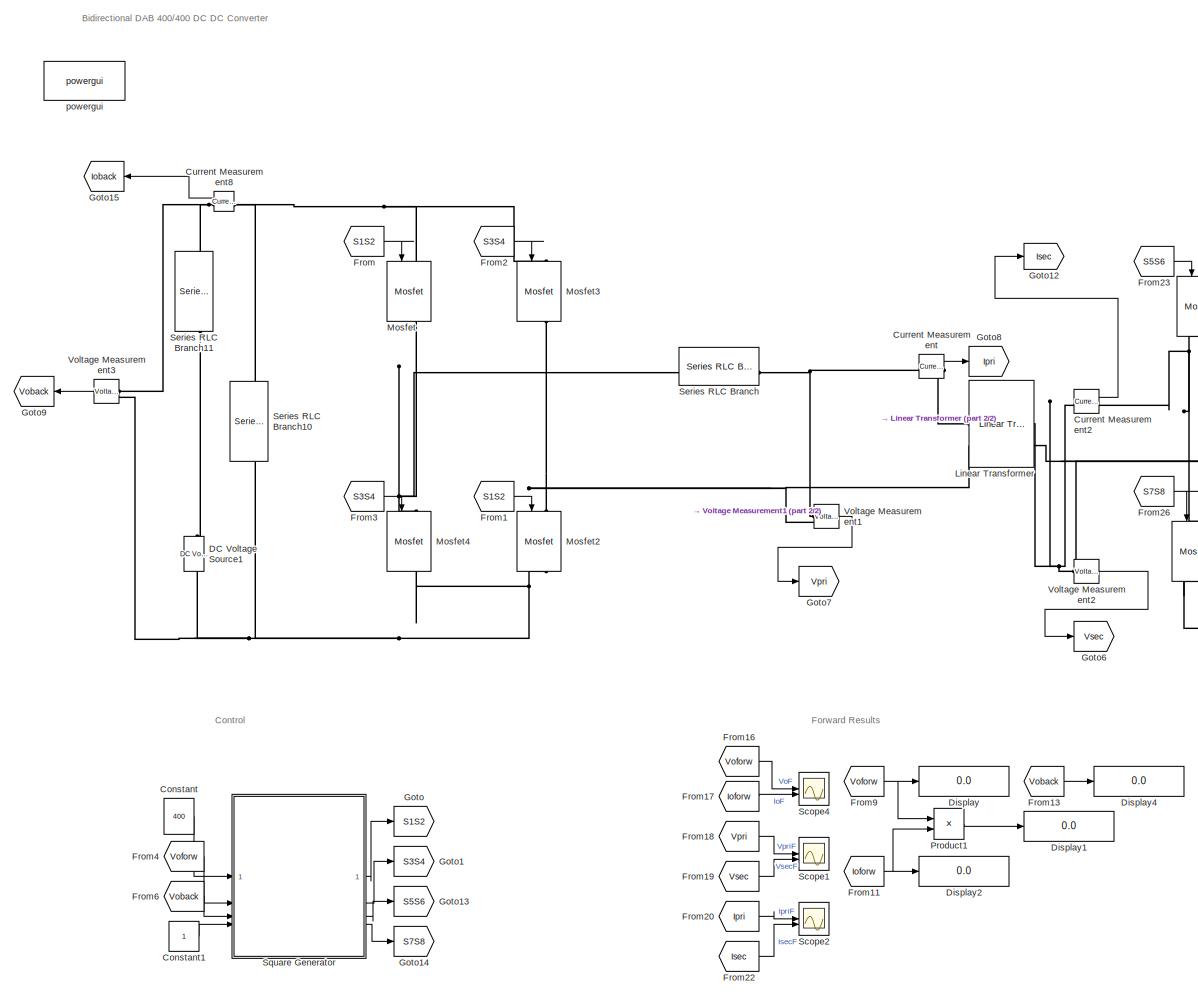
[diagram: root canvas - part 1/2, center side, full height]
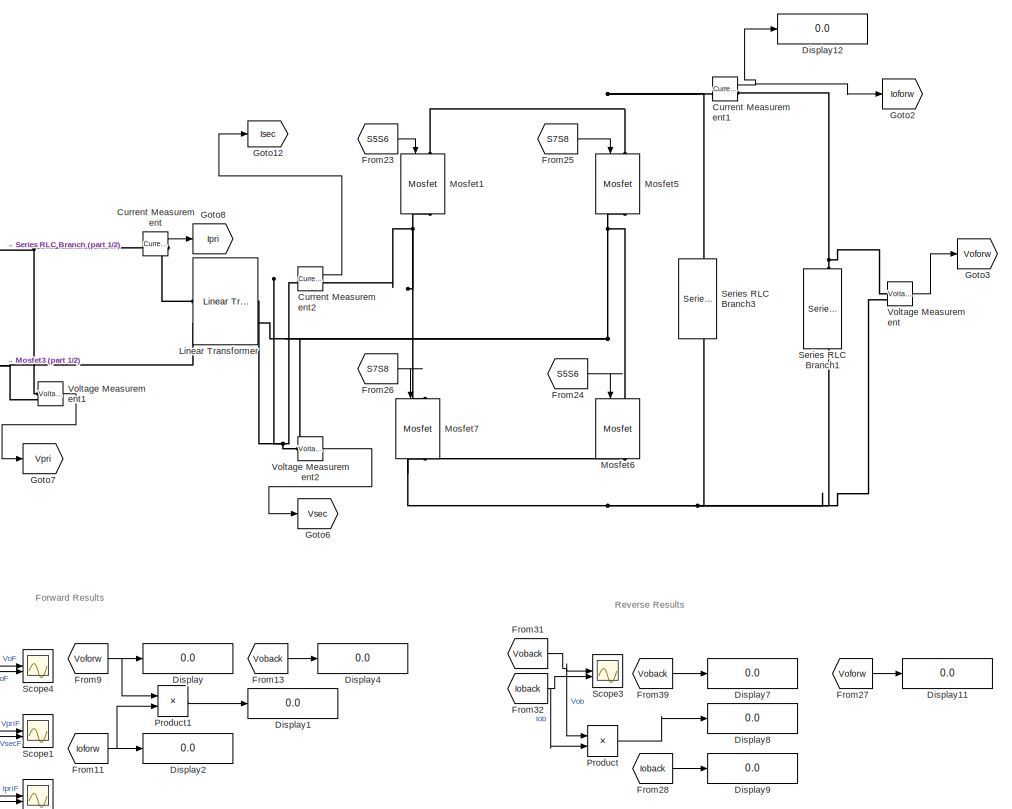
[diagram: root canvas - part 2/2, right side, full height]
MODEL slx_0366bad16a1a
KIND model
CONFIG AbsTol = auto
CONFIG EnableMultiTasking = off
CONFIG FixedStep = auto
CONFIG MaxStep = 1e-7
CONFIG MinStep = auto
CONFIG RelTol = 1e-7
CONFIG SampleTimeConstraint = Unconstrained
CONFIG SolverName = ode23tb
CONFIG StartTime = 0.0
CONFIG StopTime = 0.1
WORKSPACE source: mxarray member
WORKSPACE Ki = 0.0018
WORKSPACE Kp = 0.05
BLOCK [Constant] Constant
  Value = 400
BLOCK [Constant] Constant1
BLOCK [Reference] Current Measurement  REF=spsCurrentMeasurementLib/Current Measurement
  LibrarySourceBlock = sps_lib/Sensors and Measurements/Current Measurement
  SourceBlock = spsCurrentMeasurementLib/Current Measurement
  SourceType = Current Measurement
  UserDataPersistent = on
BLOCK [Reference] Current Measurement1  REF=spsCurrentMeasurementLib/Current Measurement
  LibrarySourceBlock = sps_lib/Sensors and Measurements/Current Measurement
  SourceBlock = spsCurrentMeasurementLib/Current Measurement
  SourceType = Current Measurement
  UserDataPersistent = on
BLOCK [Reference] Current Measurement2  REF=spsCurrentMeasurementLib/Current Measurement
  LibrarySourceBlock = sps_lib/Sensors and Measurements/Current Measurement
  SourceBlock = spsCurrentMeasurementLib/Current Measurement
  SourceType = Current Measurement
  UserDataPersistent = on
BLOCK [Reference] Current Measurement8  REF=spsCurrentMeasurementLib/Current Measurement
  LibrarySourceBlock = sps_lib/Sensors and Measurements/Current Measurement
  SourceBlock = spsCurrentMeasurementLib/Current Measurement
  SourceType = Current Measurement
  UserDataPersistent = on
BLOCK [Reference] DC Voltage Source1  REF=spsDCVoltageSourceLib/DC Voltage Source
  LibrarySourceBlock = sps_lib/Sources/DC Voltage Source
  SourceBlock = spsDCVoltageSourceLib/DC Voltage Source
  SourceType = DC Voltage Source
BLOCK [Display] Display
  Decimation = 1
BLOCK [Display] Display1
  Decimation = 1
BLOCK [Display] Display11
  Decimation = 1
BLOCK [Display] Display12
  Decimation = 1
BLOCK [Display] Display2
  Decimation = 1
BLOCK [Display] Display4
  Decimation = 1
BLOCK [Display] Display7
  Decimation = 1
BLOCK [Display] Display8
  Decimation = 1
BLOCK [Display] Display9
  Decimation = 1
BLOCK [From] From
  GotoTag = S1S2
BLOCK [From] From1
  GotoTag = S1S2
BLOCK [From] From11
  GotoTag = Ioforw
BLOCK [From] From13
  GotoTag = Voback
  NameLocation = top
BLOCK [From] From16
  GotoTag = Voforw
BLOCK [From] From17
  GotoTag = Ioforw
BLOCK [From] From18
  GotoTag = Vpri
BLOCK [From] From19
  GotoTag = Vsec
BLOCK [From] From2
  GotoTag = S3S4
BLOCK [From] From20
  GotoTag = Ipri
BLOCK [From] From22
  GotoTag = Isec
BLOCK [From] From23
  GotoTag = S5S6
BLOCK [From] From24
  GotoTag = S5S6
BLOCK [From] From25
  GotoTag = S7S8
BLOCK [From] From26
  GotoTag = S7S8
BLOCK [From] From27
  GotoTag = Voforw
  NameLocation = top
BLOCK [From] From28
  GotoTag = Ioback
BLOCK [From] From3
  GotoTag = S3S4
BLOCK [From] From31
  GotoTag = Voback
BLOCK [From] From32
  GotoTag = Ioback
BLOCK [From] From39
  GotoTag = Voback
BLOCK [From] From4
  GotoTag = Voforw
BLOCK [From] From6
  GotoTag = Voback
BLOCK [From] From9
  GotoTag = Voforw
BLOCK [Goto] Goto
  GotoTag = S1S2
BLOCK [Goto] Goto1
  GotoTag = S3S4
BLOCK [Goto] Goto12
  GotoTag = Isec
BLOCK [Goto] Goto13
  GotoTag = S5S6
BLOCK [Goto] Goto14
  GotoTag = S7S8
BLOCK [Goto] Goto15
  GotoTag = Ioback
  NameLocation = top
BLOCK [Goto] Goto2
  GotoTag = Ioforw
BLOCK [Goto] Goto3
  GotoTag = Voforw
BLOCK [Goto] Goto6
  GotoTag = Vsec
BLOCK [Goto] Goto7
  GotoTag = Vpri
BLOCK [Goto] Goto8
  GotoTag = Ipri
BLOCK [Goto] Goto9
  GotoTag = Voback
  NameLocation = top
BLOCK [Reference] Linear Transformer  REF=spsLinearTransformerLib/Linear Transformer
  LibrarySourceBlock = sps_lib/Power Grid Elements/Linear Transformer
  SourceBlock = spsLinearTransformerLib/Linear Transformer
  SourceType = Linear Transformer
BLOCK [Reference] Mosfet  REF=spsMosfetLib/Mosfet
  LibrarySourceBlock = sps_lib/Power Electronics/Mosfet
  NameLocation = left
  SourceBlock = spsMosfetLib/Mosfet
  SourceType = Mosfet
BLOCK [Reference] Mosfet1  REF=spsMosfetLib/Mosfet
  LibrarySourceBlock = sps_lib/Power Electronics/Mosfet
  NameLocation = left
  SourceBlock = spsMosfetLib/Mosfet
  SourceType = Mosfet
BLOCK [Reference] Mosfet2  REF=spsMosfetLib/Mosfet
  LibrarySourceBlock = sps_lib/Power Electronics/Mosfet
  NameLocation = left
  SourceBlock = spsMosfetLib/Mosfet
  SourceType = Mosfet
BLOCK [Reference] Mosfet3  REF=spsMosfetLib/Mosfet
  LibrarySourceBlock = sps_lib/Power Electronics/Mosfet
  NameLocation = left
  SourceBlock = spsMosfetLib/Mosfet
  SourceType = Mosfet
BLOCK [Reference] Mosfet4  REF=spsMosfetLib/Mosfet
  LibrarySourceBlock = sps_lib/Power Electronics/Mosfet
  NameLocation = left
  SourceBlock = spsMosfetLib/Mosfet
  SourceType = Mosfet
BLOCK [Reference] Mosfet5  REF=spsMosfetLib/Mosfet
  LibrarySourceBlock = sps_lib/Power Electronics/Mosfet
  NameLocation = left
  SourceBlock = spsMosfetLib/Mosfet
  SourceType = Mosfet
BLOCK [Reference] Mosfet6  REF=spsMosfetLib/Mosfet
  LibrarySourceBlock = sps_lib/Power Electronics/Mosfet
  NameLocation = left
  SourceBlock = spsMosfetLib/Mosfet
  SourceType = Mosfet
BLOCK [Reference] Mosfet7  REF=spsMosfetLib/Mosfet
  LibrarySourceBlock = sps_lib/Power Electronics/Mosfet
  NameLocation = left
  SourceBlock = spsMosfetLib/Mosfet
  SourceType = Mosfet
BLOCK [Product] Product
BLOCK [Product] Product1
BLOCK [Scope] Scope1
  Floating = off
  NumInputPorts = 2
  ScopeSpecificationString = Simulink.scopes.TimeScopeBlockCfg('CurrentConfiguration', extmgr.ConfigurationSet(extmgr.Configuration('Core','General UI',true,'FigureColor',[1 1 1]),extmgr.Configuration('Core','Source UI',true),extmgr.Configuration('Sources','WiredSimulink',true,'DataLoggingVariableName','ScopeData2'),extmgr.Configuration('Visuals','Time Domain',true,'SerializedDisplays',{struct('MinYLimReal','-514.13663','MaxY...<+3164ch>
BLOCK [Scope] Scope2
  Floating = off
  NumInputPorts = 2
  ScopeSpecificationString = Simulink.scopes.TimeScopeBlockCfg('CurrentConfiguration', extmgr.ConfigurationSet(extmgr.Configuration('Core','General UI',true,'FigureColor',[1 1 1]),extmgr.Configuration('Core','Source UI',true),extmgr.Configuration('Sources','WiredSimulink',true,'DataLoggingVariableName','ScopeData3'),extmgr.Configuration('Visuals','Time Domain',true,'SerializedDisplays',{struct('MinYLimReal','-78.89007','MaxYL...<+3158ch>
BLOCK [Scope] Scope3
  Floating = off
  NumInputPorts = 2
  ScopeSpecificationString = Simulink.scopes.TimeScopeBlockCfg('CurrentConfiguration', extmgr.ConfigurationSet(extmgr.Configuration('Core','General UI',true,'FigureColor',[1 1 1]),extmgr.Configuration('Core','Source UI',true),extmgr.Configuration('Sources','WiredSimulink',true,'DataLoggingVariableName','ScopeData4'),extmgr.Configuration('Visuals','Time Domain',true,'SerializedDisplays',{struct('MinYLimReal','-34.84732','MaxYL...<+2247ch>
BLOCK [Scope] Scope4
  Floating = off
  NumInputPorts = 2
  ScopeSpecificationString = Simulink.scopes.TimeScopeBlockCfg('CurrentConfiguration', extmgr.ConfigurationSet(extmgr.Configuration('Core','General UI',true,'FigureColor',[1 1 1]),extmgr.Configuration('Core','Source UI',true),extmgr.Configuration('Sources','WiredSimulink',true),extmgr.Configuration('Visuals','Time Domain',true,'SerializedDisplays',{struct('MinYLimReal','-55.95546','MaxYLimReal','453.98754','YLabelReal','','Mi...<+2437ch>
BLOCK [Reference] Series RLC Branch  REF=spsSeriesRLCBranchLib/Series RLC Branch
  LibrarySourceBlock = sps_lib/Passives/Series RLC Branch
  SourceBlock = spsSeriesRLCBranchLib/Series RLC Branch
  SourceType = Series RLC Branch
BLOCK [Reference] Series RLC Branch1  REF=spsSeriesRLCBranchLib/Series RLC Branch
  LibrarySourceBlock = sps_lib/Passives/Series RLC Branch
  NameLocation = left
  SourceBlock = spsSeriesRLCBranchLib/Series RLC Branch
  SourceType = Series RLC Branch
BLOCK [Reference] Series RLC Branch10  REF=spsSeriesRLCBranchLib/Series RLC Branch
  LibrarySourceBlock = sps_lib/Passives/Series RLC Branch
  NameLocation = left
  SourceBlock = spsSeriesRLCBranchLib/Series RLC Branch
  SourceType = Series RLC Branch
BLOCK [Reference] Series RLC Branch11  REF=spsSeriesRLCBranchLib/Series RLC Branch
  LibrarySourceBlock = sps_lib/Passives/Series RLC Branch
  NameLocation = left
  SourceBlock = spsSeriesRLCBranchLib/Series RLC Branch
  SourceType = Series RLC Branch
BLOCK [Reference] Series RLC Branch3  REF=spsSeriesRLCBranchLib/Series RLC Branch
  LibrarySourceBlock = sps_lib/Passives/Series RLC Branch
  NameLocation = left
  SourceBlock = spsSeriesRLCBranchLib/Series RLC Branch
  SourceType = Series RLC Branch
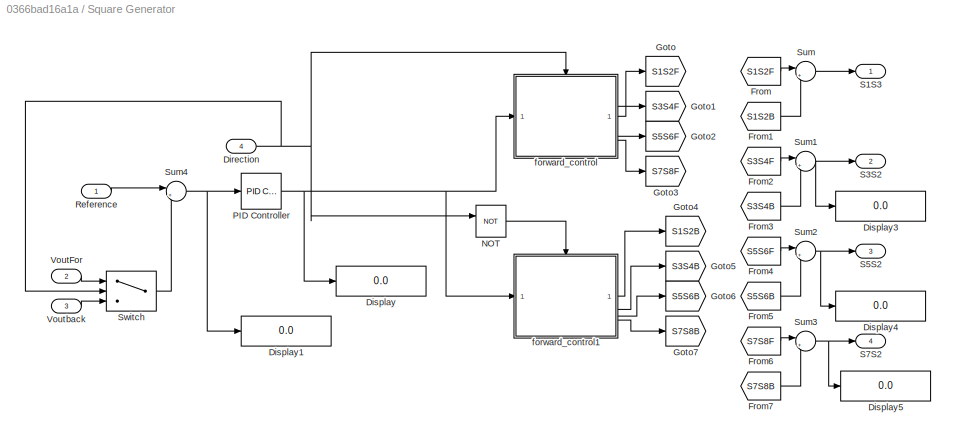
BLOCK [SubSystem] Square Generator 
BLOCK [Inport] Square Generator /Direction
  Port = 4
BLOCK [Display] Square Generator /Display
  Decimation = 1
BLOCK [Display] Square Generator /Display1
  Decimation = 1
BLOCK [Display] Square Generator /Display3
  Decimation = 1
BLOCK [Display] Square Generator /Display4
  Decimation = 1
BLOCK [Display] Square Generator /Display5
  Decimation = 1
BLOCK [From] Square Generator /From
  GotoTag = S1S2F
BLOCK [From] Square Generator /From1
  GotoTag = S1S2B
BLOCK [From] Square Generator /From2
  GotoTag = S3S4F
BLOCK [From] Square Generator /From3
  GotoTag = S3S4B
BLOCK [From] Square Generator /From4
  GotoTag = S5S6F
BLOCK [From] Square Generator /From5
  GotoTag = S5S6B
BLOCK [From] Square Generator /From6
  GotoTag = S7S8F
BLOCK [From] Square Generator /From7
  GotoTag = S7S8B
BLOCK [Goto] Square Generator /Goto
  GotoTag = S1S2F
BLOCK [Goto] Square Generator /Goto1
  GotoTag = S3S4F
BLOCK [Goto] Square Generator /Goto2
  GotoTag = S5S6F
BLOCK [Goto] Square Generator /Goto3
  GotoTag = S7S8F
BLOCK [Goto] Square Generator /Goto4
  GotoTag = S1S2B
BLOCK [Goto] Square Generator /Goto5
  GotoTag = S3S4B
BLOCK [Goto] Square Generator /Goto6
  GotoTag = S5S6B
BLOCK [Goto] Square Generator /Goto7
  GotoTag = S7S8B
BLOCK [Logic] Square Generator /NOT
  AllPortsSameDT = off
  IconShape = distinctive
  Operator = NOT
  OutDataTypeStr = boolean
BLOCK [Reference] Square Generator /PID Controller  REF=slpidlib/PID Controller
  LibrarySourceBlock = simulink/Continuous/PID Controller
  SourceBlock = slpidlib/PID Controller
  SourceType = PID 1dof
BLOCK [Inport] Square Generator /Reference
  NameLocation = top
BLOCK [Outport] Square Generator /S1S3
  NameLocation = top
BLOCK [Outport] Square Generator /S3S2
  Port = 2
BLOCK [Outport] Square Generator /S5S2
  Port = 3
BLOCK [Outport] Square Generator /S7S2
  Port = 4
BLOCK [Sum] Square Generator /Sum
  Inputs = |++
BLOCK [Sum] Square Generator /Sum1
  Inputs = |++
BLOCK [Sum] Square Generator /Sum2
  Inputs = |++
BLOCK [Sum] Square Generator /Sum3
  Inputs = |++
BLOCK [Sum] Square Generator /Sum4
  Inputs = |+-
BLOCK [Switch] Square Generator /Switch
  Criteria = u2 > Threshold
  InputSameDT = off
  SaturateOnIntegerOverflow = off
BLOCK [Inport] Square Generator /VoutFor
  Port = 2
BLOCK [Inport] Square Generator /Voutback
  Port = 3
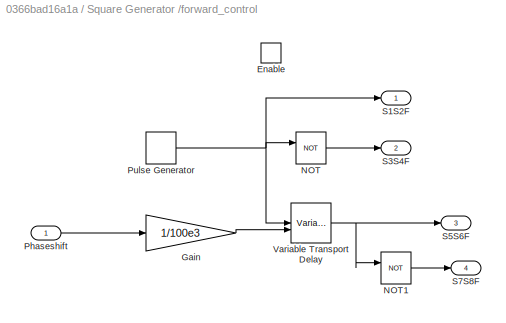
BLOCK [SubSystem] Square Generator /forward_control
BLOCK [EnablePort] Square Generator /forward_control/Enable
BLOCK [Gain] Square Generator /forward_control/Gain
  Gain = 1/100e3
BLOCK [Logic] Square Generator /forward_control/NOT
  AllPortsSameDT = off
  NameLocation = top
  Operator = NOT
  OutDataTypeStr = boolean
BLOCK [Logic] Square Generator /forward_control/NOT1
  AllPortsSameDT = off
  NameLocation = top
  Operator = NOT
  OutDataTypeStr = boolean
BLOCK [Inport] Square Generator /forward_control/Phaseshift
BLOCK [DiscretePulseGenerator] Square Generator /forward_control/Pulse Generator
  Period = 1/100e3
  PulseType = Time based
  PulseWidth = 50
BLOCK [Outport] Square Generator /forward_control/S1S2F
BLOCK [Outport] Square Generator /forward_control/S3S4F
  Port = 2
BLOCK [Outport] Square Generator /forward_control/S5S6F
  Port = 3
BLOCK [Outport] Square Generator /forward_control/S7S8F
  Port = 4
BLOCK [VariableTransportDelay] Square Generator /forward_control/Variable Transport Delay
  MaximumDelay = 10
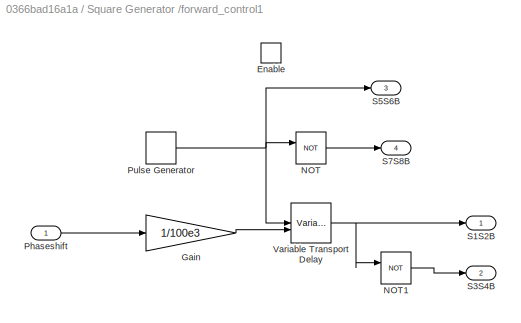
BLOCK [SubSystem] Square Generator /forward_control1
BLOCK [EnablePort] Square Generator /forward_control1/Enable
BLOCK [Gain] Square Generator /forward_control1/Gain
  Gain = 1/100e3
BLOCK [Logic] Square Generator /forward_control1/NOT
  AllPortsSameDT = off
  NameLocation = top
  Operator = NOT
  OutDataTypeStr = boolean
BLOCK [Logic] Square Generator /forward_control1/NOT1
  AllPortsSameDT = off
  NameLocation = top
  Operator = NOT
  OutDataTypeStr = boolean
BLOCK [Inport] Square Generator /forward_control1/Phaseshift
BLOCK [DiscretePulseGenerator] Square Generator /forward_control1/Pulse Generator
  Period = 1/100e3
  PulseType = Time based
  PulseWidth = 50
BLOCK [Outport] Square Generator /forward_control1/S1S2B
BLOCK [Outport] Square Generator /forward_control1/S3S4B
  Port = 2
BLOCK [Outport] Square Generator /forward_control1/S5S6B
  Port = 3
BLOCK [Outport] Square Generator /forward_control1/S7S8B
  Port = 4
BLOCK [VariableTransportDelay] Square Generator /forward_control1/Variable Transport Delay
  MaximumDelay = 10
BLOCK [Reference] Voltage Measurement  REF=spsVoltageMeasurementLib/Voltage Measurement
  LibrarySourceBlock = sps_lib/Sensors and Measurements/Voltage Measurement
  SourceBlock = spsVoltageMeasurementLib/Voltage Measurement
  SourceType = Voltage Measurement
  UserDataPersistent = on
BLOCK [Reference] Voltage Measurement1  REF=spsVoltageMeasurementLib/Voltage Measurement
  LibrarySourceBlock = sps_lib/Sensors and Measurements/Voltage Measurement
  SourceBlock = spsVoltageMeasurementLib/Voltage Measurement
  SourceType = Voltage Measurement
  UserDataPersistent = on
BLOCK [Reference] Voltage Measurement2  REF=spsVoltageMeasurementLib/Voltage Measurement
  LibrarySourceBlock = sps_lib/Sensors and Measurements/Voltage Measurement
  SourceBlock = spsVoltageMeasurementLib/Voltage Measurement
  SourceType = Voltage Measurement
  UserDataPersistent = on
BLOCK [Reference] Voltage Measurement3  REF=spsVoltageMeasurementLib/Voltage Measurement
  LibrarySourceBlock = sps_lib/Sensors and Measurements/Voltage Measurement
  NameLocation = top
  SourceBlock = spsVoltageMeasurementLib/Voltage Measurement
  SourceType = Voltage Measurement
  UserDataPersistent = on
BLOCK [Reference] powergui  REF=sps_lib/powergui
  Priority = 1
  SourceBlock = sps_lib/powergui
  SourceType = PSB option menu block
ANNOTATION (root): Forward Results
ANNOTATION (root): Reverse Results
ANNOTATION (root): Control
ANNOTATION (root): Bidirectional DAB 400/400 DC DC Converter
LINE Constant1:1 -> Square Generator :4
LINE Constant:1 -> Square Generator :1
NET Current Measurement1:1 -> Display12:1, Goto2:1
LINE Current Measurement2:1 -> Goto12:1
LINE Current Measurement8:1 -> Goto15:1
LINE Current Measurement:1 -> Goto8:1
NET From11:1 -> Display2:1, Product1:2
LINE From13:1 -> Display4:1
LINE From16:1 -> Scope4:1
LINE From17:1 -> Scope4:2
LINE From18:1 -> Scope1:1
LINE From19:1 -> Scope1:2
LINE From1:1 -> Mosfet2:1
LINE From20:1 -> Scope2:1
LINE From22:1 -> Scope2:2
LINE From23:1 -> Mosfet1:1
LINE From24:1 -> Mosfet6:1
LINE From25:1 -> Mosfet5:1
LINE From26:1 -> Mosfet7:1
LINE From27:1 -> Display11:1
LINE From28:1 -> Display9:1
LINE From2:1 -> Mosfet3:1
NET From31:1 -> Product:1, Scope3:1
NET From32:1 -> Product:2, Scope3:2
LINE From39:1 -> Display7:1
LINE From3:1 -> Mosfet4:1
LINE From4:1 -> Square Generator :2
LINE From6:1 -> Square Generator :3
NET From9:1 -> Display:1, Product1:1
LINE From:1 -> Mosfet:1
LINE Product1:1 -> Display1:1
LINE Product:1 -> Display8:1
NET Square Generator /Direction:1 -> Square Generator /NOT:1, Square Generator /Switch:2, Square Generator /forward_control:enable
LINE Square Generator /From1:1 -> Square Generator /Sum:2
LINE Square Generator /From2:1 -> Square Generator /Sum1:1
LINE Square Generator /From3:1 -> Square Generator /Sum1:2
LINE Square Generator /From4:1 -> Square Generator /Sum2:1
LINE Square Generator /From5:1 -> Square Generator /Sum2:2
LINE Square Generator /From6:1 -> Square Generator /Sum3:1
LINE Square Generator /From7:1 -> Square Generator /Sum3:2
LINE Square Generator /From:1 -> Square Generator /Sum:1
LINE Square Generator /NOT:1 -> Square Generator /forward_control1:enable
NET Square Generator /PID Controller:1 -> Square Generator /Display:1, Square Generator /forward_control1:1, Square Generator /forward_control:1
LINE Square Generator /Reference:1 -> Square Generator /Sum4:1
NET Square Generator /Sum1:1 -> Square Generator /Display3:1, Square Generator /S3S2:1
NET Square Generator /Sum2:1 -> Square Generator /Display4:1, Square Generator /S5S2:1
NET Square Generator /Sum3:1 -> Square Generator /Display5:1, Square Generator /S7S2:1
NET Square Generator /Sum4:1 -> Square Generator /Display1:1, Square Generator /PID Controller:1
LINE Square Generator /Sum:1 -> Square Generator /S1S3:1
LINE Square Generator /Switch:1 -> Square Generator /Sum4:2
LINE Square Generator /VoutFor:1 -> Square Generator /Switch:1
LINE Square Generator /Voutback:1 -> Square Generator /Switch:3
LINE Square Generator /forward_control/Gain:1 -> Square Generator /forward_control/Variable Transport Delay:2
LINE Square Generator /forward_control/NOT1:1 -> Square Generator /forward_control/S7S8F:1
LINE Square Generator /forward_control/NOT:1 -> Square Generator /forward_control/S3S4F:1
LINE Square Generator /forward_control/Phaseshift:1 -> Square Generator /forward_control/Gain:1
NET Square Generator /forward_control/Pulse Generator:1 -> Square Generator /forward_control/NOT:1, Square Generator /forward_control/S1S2F:1, Square Generator /forward_control/Variable Transport Delay:1
NET Square Generator /forward_control/Variable Transport Delay:1 -> Square Generator /forward_control/NOT1:1, Square Generator /forward_control/S5S6F:1
LINE Square Generator /forward_control1/Gain:1 -> Square Generator /forward_control1/Variable Transport Delay:2
LINE Square Generator /forward_control1/NOT1:1 -> Square Generator /forward_control1/S3S4B:1
LINE Square Generator /forward_control1/NOT:1 -> Square Generator /forward_control1/S7S8B:1
LINE Square Generator /forward_control1/Phaseshift:1 -> Square Generator /forward_control1/Gain:1
NET Square Generator /forward_control1/Pulse Generator:1 -> Square Generator /forward_control1/NOT:1, Square Generator /forward_control1/S5S6B:1, Square Generator /forward_control1/Variable Transport Delay:1
NET Square Generator /forward_control1/Variable Transport Delay:1 -> Square Generator /forward_control1/NOT1:1, Square Generator /forward_control1/S1S2B:1
LINE Square Generator /forward_control1:1 -> Square Generator /Goto4:1
LINE Square Generator /forward_control1:2 -> Square Generator /Goto5:1
LINE Square Generator /forward_control1:3 -> Square Generator /Goto6:1
LINE Square Generator /forward_control1:4 -> Square Generator /Goto7:1
LINE Square Generator /forward_control:1 -> Square Generator /Goto:1
LINE Square Generator /forward_control:2 -> Square Generator /Goto1:1
LINE Square Generator /forward_control:3 -> Square Generator /Goto2:1
LINE Square Generator /forward_control:4 -> Square Generator /Goto3:1
LINE Square Generator :1 -> Goto:1
LINE Square Generator :2 -> Goto1:1
LINE Square Generator :3 -> Goto13:1
LINE Square Generator :4 -> Goto14:1
LINE Voltage Measurement1:1 -> Goto7:1
LINE Voltage Measurement2:1 -> Goto6:1
LINE Voltage Measurement3:1 -> Goto9:1
LINE Voltage Measurement:1 -> Goto3:1
PNET net1: Current Measurement1:LConn1 -- Mosfet1:LConn1 -- Mosfet5:LConn1 -- Series RLC Branch3:LConn1
PNET net2: Current Measurement1:RConn1 -- Series RLC Branch1:LConn1 -- Voltage Measurement:LConn1
PNET net3: Current Measurement2:LConn1 -- Linear Transformer:RConn1 -- Voltage Measurement2:LConn1
PNET net4: Current Measurement2:RConn1 -- Mosfet1:RConn1 -- Mosfet7:LConn1
PNET net5: Current Measurement8:LConn1 -- Mosfet3:LConn1 -- Mosfet:LConn1 -- Series RLC Branch10:LConn1
PNET net6: Current Measurement8:RConn1 -- Series RLC Branch11:LConn1 -- Voltage Measurement3:LConn1
PNET net7: Current Measurement:LConn1 -- Series RLC Branch:RConn1 -- Voltage Measurement1:LConn1
PLINE Current Measurement:RConn1 -- Linear Transformer:LConn1
PNET net8: DC Voltage Source1:LConn1 -- Mosfet2:RConn1 -- Mosfet4:RConn1 -- Series RLC Branch10:RConn1 -- Voltage Measurement3:LConn2
PLINE DC Voltage Source1:RConn1 -- Series RLC Branch11:RConn1
PNET net9: Linear Transformer:LConn2 -- Mosfet2:LConn1 -- Mosfet3:RConn1 -- Voltage Measurement1:LConn2
PNET net10: Linear Transformer:RConn2 -- Mosfet5:RConn1 -- Mosfet6:LConn1 -- Voltage Measurement2:LConn2
PNET net11: Mosfet4:LConn1 -- Mosfet:RConn1 -- Series RLC Branch:LConn1
PNET net12: Mosfet6:RConn1 -- Mosfet7:RConn1 -- Series RLC Branch1:RConn1 -- Series RLC Branch3:RConn1 -- Voltage Measurement:LConn2
note: NET lines group one-source signal fan-out (src -> all destinations, sorted); 1:1 wires keep LINE; PNET lines group multi-terminal physical nets as a canonical sorted terminal list (undirected conserving connections); 2-terminal nets keep the pairwise PLINE form
